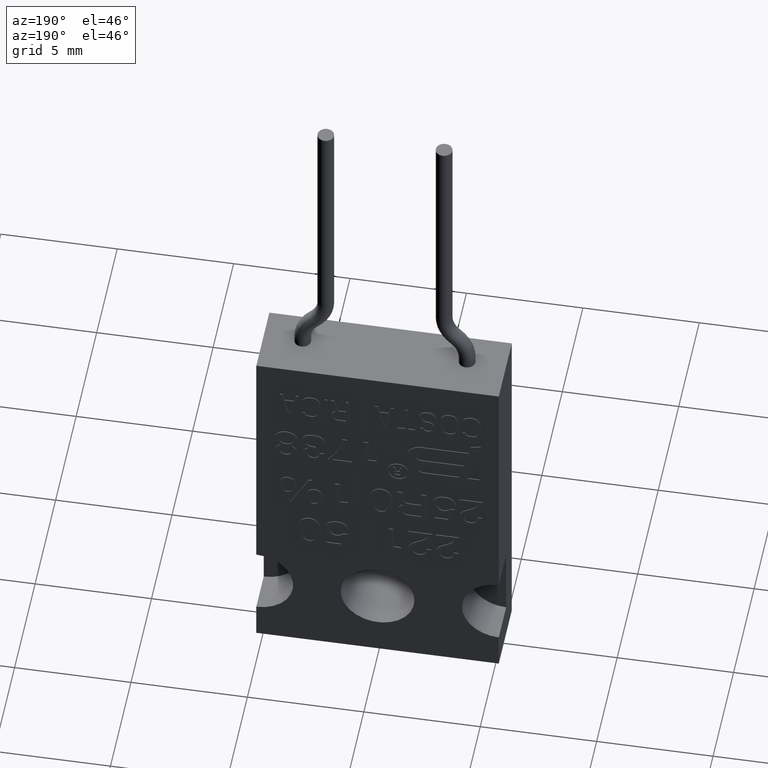
[diagram: clean part render]
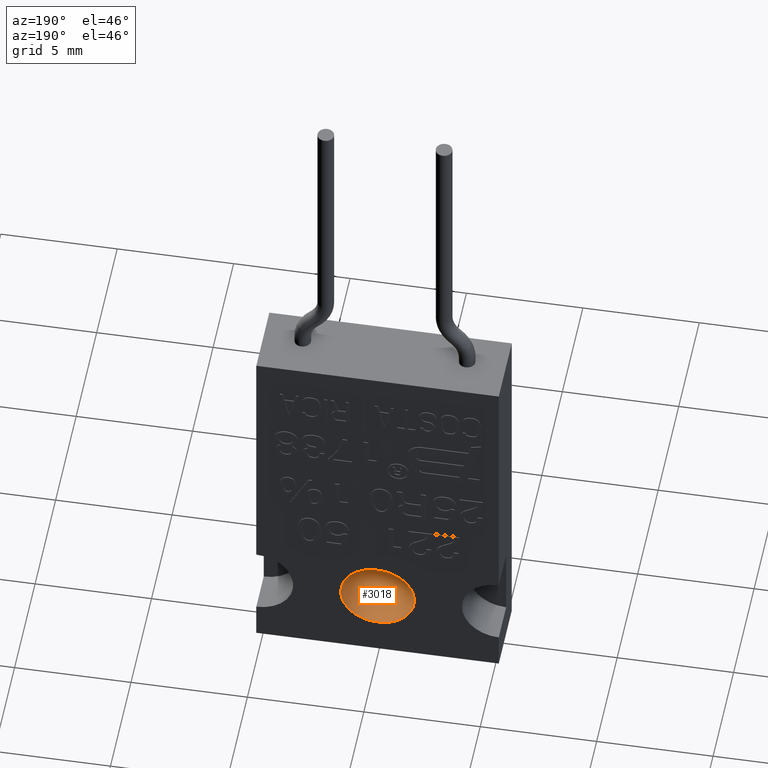
[diagram: same view with one face highlighted and labeled with its STEP entity id]
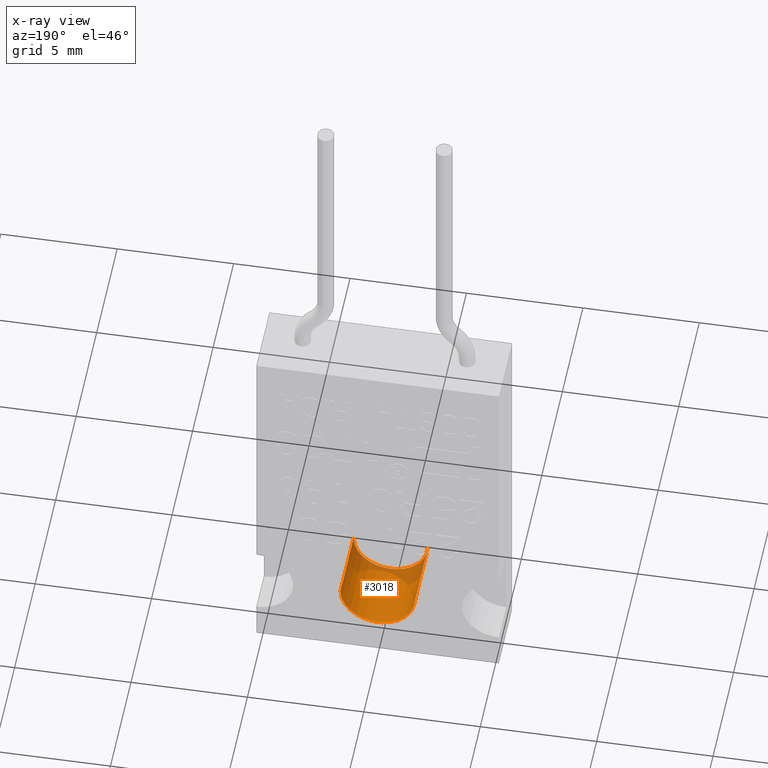
[diagram: x-ray of the same camera — body ghosted, the highlighted face saturated]
A machine part, auxiliary view. The second image highlights one B-rep face of the part: STEP entity #3018.
The next image is the same camera in x-ray: the body ghosted, the highlighted face saturated — about 21% of this face is hidden behind the body in this view.
In plain terms, the highlighted cylindrical surface (partial cylindrical patch) has radius 1.5875 mm, axis along (0, -1, 0).
Its self-contained STEP definition (entity closure, byte-faithful):
#2653=CARTESIAN_POINT('',(0.E0,2.95E-1,-1.25E-1));
#2654=DIRECTION('',(0.E0,0.E0,1.E0));
#2655=DIRECTION('',(1.E0,0.E0,0.E0));
#2656=AXIS2_PLACEMENT_3D('',#2653,#2654,#2655);
#2666=CARTESIAN_POINT('',(0.E0,2.95E-1,0.E0));
#2667=DIRECTION('',(0.E0,0.E0,-1.E0));
#2668=DIRECTION('',(-1.E0,0.E0,0.E0));
#2669=AXIS2_PLACEMENT_3D('',#2666,#2667,#2668);
#2709=DIRECTION('',(0.E0,0.E0,1.E0));
#2710=VECTOR('',#2709,1.25E-1);
#2711=CARTESIAN_POINT('',(-6.25E-2,2.95E-1,-1.25E-1));
#2712=LINE('',#2711,#2710);
#2713=DIRECTION('',(0.E0,0.E0,1.E0));
#2714=VECTOR('',#2713,1.25E-1);
#2715=CARTESIAN_POINT('',(6.25E-2,2.95E-1,-1.25E-1));
#2716=LINE('',#2715,#2714);
#2817=CARTESIAN_POINT('',(6.25E-2,2.95E-1,-1.25E-1));
#2818=CARTESIAN_POINT('',(6.25E-2,2.95E-1,0.E0));
#2819=VERTEX_POINT('',#2817);
#2820=VERTEX_POINT('',#2818);
#2821=CARTESIAN_POINT('',(-6.25E-2,2.95E-1,-1.25E-1));
#2822=CARTESIAN_POINT('',(-6.25E-2,2.95E-1,0.E0));
#2823=VERTEX_POINT('',#2821);
#2824=VERTEX_POINT('',#2822);
#3005=CARTESIAN_POINT('',(0.E0,2.95E-1,-1.25E-1));
#3006=DIRECTION('',(0.E0,0.E0,1.E0));
#3007=DIRECTION('',(1.E0,0.E0,0.E0));
#3008=AXIS2_PLACEMENT_3D('',#3005,#3006,#3007);
#3009=CYLINDRICAL_SURFACE('',#3008,6.25E-2);
#3010=ORIENTED_EDGE('',*,*,#2933,.T.);
#3012=ORIENTED_EDGE('',*,*,#3011,.F.);
#3013=ORIENTED_EDGE('',*,*,#2901,.T.);
#3015=ORIENTED_EDGE('',*,*,#3014,.T.);
#3016=EDGE_LOOP('',(#3010,#3012,#3013,#3015));
#3017=FACE_OUTER_BOUND('',#3016,.F.);
#3018=ADVANCED_FACE('',(#3017),#3009,.F.);
#2657=CIRCLE('',#2656,6.25E-2);
#2670=CIRCLE('',#2669,6.25E-2);
#2901=EDGE_CURVE('',#2819,#2823,#2657,.T.);
#2933=EDGE_CURVE('',#2824,#2820,#2670,.T.);
#3011=EDGE_CURVE('',#2819,#2820,#2716,.T.);
#3014=EDGE_CURVE('',#2823,#2824,#2712,.T.);